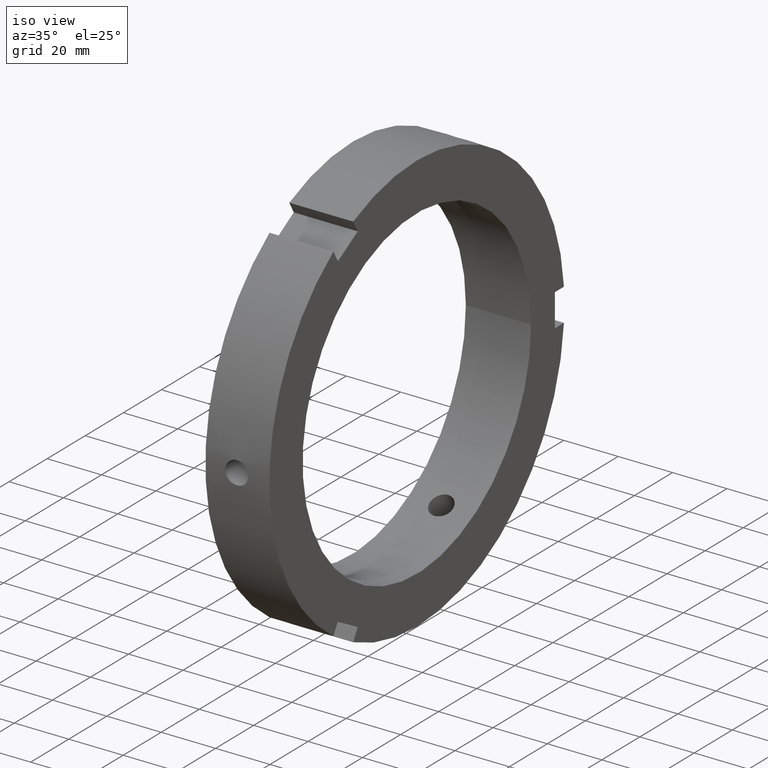
[diagram: clean part render]
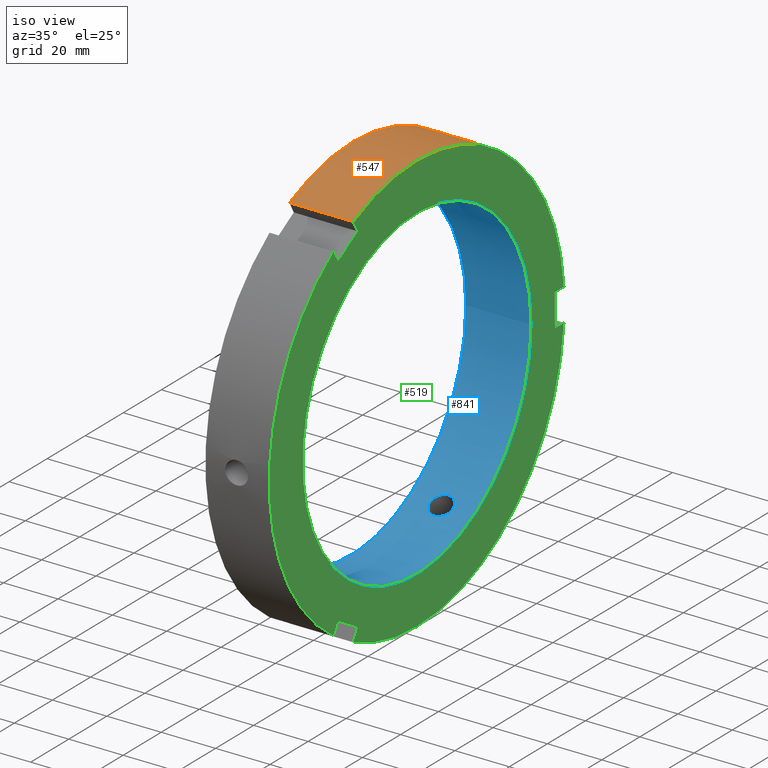
[diagram: same view with three faces highlighted in distinct colors, each labeled with its STEP entity id]
A machine part, iso view with three faces highlighted in distinct colors.
Their STEP definitions:

[orange] entity #547 — the highlighted cylindrical surface (partial cylindrical patch) has radius 77.5 mm, axis along (1, 0, 0).
#175=CARTESIAN_POINT('',(11.999999999999984,42.320294496695240,64.924900259553624));
#176=VERTEX_POINT('',#175);
#177=CARTESIAN_POINT('',(11.999999999999984,42.320294496695247,64.924900259553624));
#178=CARTESIAN_POINT('',(12.525964593773827,42.320294496695247,64.924900259553624));
#179=CARTESIAN_POINT('',(13.086917241225173,42.232201750691601,64.982589392082332));
#180=CARTESIAN_POINT('',(14.118723575508250,41.872717265855627,65.214809188765045));
#181=CARTESIAN_POINT('',(14.589585949451681,41.601176498465279,65.389070450448429));
#182=CARTESIAN_POINT('',(15.333140342570605,40.971455917133348,65.785471195247538));
#183=CARTESIAN_POINT('',(15.655432256882104,40.571244418953100,66.034009391728972));
#184=CARTESIAN_POINT('',(16.082864919867323,39.688345750655046,66.568397018586751));
#185=CARTESIAN_POINT('',(16.187999999999985,39.205498568363375,66.853986572233893));
#186=CARTESIAN_POINT('',(16.187999999999985,38.294501431636718,67.379951014354006));
#187=CARTESIAN_POINT('',(16.082864919867326,37.805750031977013,67.655314163540766));
#188=CARTESIAN_POINT('',(15.655432256882111,36.901507437501060,68.152733025825427));
#189=CARTESIAN_POINT('',(15.333140342570605,36.486161296447250,68.375057251895441));
#190=CARTESIAN_POINT('',(14.589585949451687,35.828007890706168,68.722210900215259));
#191=CARTESIAN_POINT('',(14.118723575508263,35.541322827497645,68.870241472096723));
#192=CARTESIAN_POINT('',(13.086917241225184,35.160472341890767,69.065454269889685));
#193=CARTESIAN_POINT('',(12.525964593773828,35.066465714596802,69.112900259553612));
#194=CARTESIAN_POINT('',(11.474035406226140,35.066465714596802,69.112900259553612));
#195=CARTESIAN_POINT('',(10.913082758774785,35.160472341890767,69.065454269889685));
#196=CARTESIAN_POINT('',(9.881276424491706,35.541322827497638,68.870241472096723));
#197=CARTESIAN_POINT('',(9.410414050548283,35.828007890706168,68.722210900215259));
#198=CARTESIAN_POINT('',(8.666859657429363,36.486161296447250,68.375057251895441));
#199=CARTESIAN_POINT('',(8.344567743117853,36.901507437501060,68.152733025825427));
#200=CARTESIAN_POINT('',(7.917135080132639,37.805750031977013,67.655314163540766));
#201=CARTESIAN_POINT('',(7.811999999999983,38.294501431636718,67.379951014354006));
#202=CARTESIAN_POINT('',(7.811999999999983,39.205498568363375,66.853986572233893));
#203=CARTESIAN_POINT('',(7.917135080132642,39.688345750655039,66.568397018586765));
#204=CARTESIAN_POINT('',(8.344567743117858,40.571244418953086,66.034009391728972));
#205=CARTESIAN_POINT('',(8.666859657429360,40.971455917133348,65.785471195247538));
#206=CARTESIAN_POINT('',(9.410414050548283,41.601176498465279,65.389070450448429));
#207=CARTESIAN_POINT('',(9.881276424491714,41.872717265855627,65.214809188765045));
#208=CARTESIAN_POINT('',(10.913082758774790,42.232201750691601,64.982589392082332));
#209=CARTESIAN_POINT('',(11.474035406226140,42.320294496695254,64.924900259553610));
#210=CARTESIAN_POINT('',(11.999999999999984,42.320294496695254,64.924900259553610));
#211=B_SPLINE_CURVE_WITH_KNOTS('',3,(#177,#178,#179,#180,#181,#182,#183,#184,#185,#186,#187,#188,#189,#190,#191,#192,#193,#194,#195,#196,#197,#198,#199,#200,#201,#202,#203,#204,#205,#206,#207,#208,#209,#210),.UNSPECIFIED.,.T.,.U.,(4,2,2,2,2,2,2,2,2,2,2,2,2,2,2,2,4),(0.0,0.157789378132153,0.315578756264306,0.473368088900339,0.631157421536372,0.788946754172404,0.946736086808437,1.104525464940590,1.262314843072743,1.420104221204896,1.577893599337049,1.735682931973082,1.893472264609114,2.051261597245147,2.209050929881181,2.366840308013333,2.524629686145486),.UNSPECIFIED.);
#212=EDGE_CURVE('',#176,#176,#211,.T.);
#265=CARTESIAN_POINT('',(0.499999999999980,-33.437544009294264,69.915525104418037));
#266=VERTEX_POINT('',#265);
#281=CARTESIAN_POINT('',(23.999999999999986,-33.437544009294264,69.915525104418037));
#282=VERTEX_POINT('',#281);
#289=CARTESIAN_POINT('',(0.499999999999979,-33.437544009294264,69.915525104418037));
#290=DIRECTION('',(1.0,0.0,0.0));
#291=VECTOR('',#290,23.500000000000007);
#292=LINE('',#289,#291);
#293=EDGE_CURVE('',#266,#282,#292,.T.);
#481=CARTESIAN_POINT('',(23.999999999999986,77.267392864001820,5.999999999999996));
#482=VERTEX_POINT('',#481);
#489=CARTESIAN_POINT('',(23.999999999999986,0.0,0.0));
#490=DIRECTION('',(1.0,0.0,0.0));
#491=DIRECTION('',(0.0,1.0,0.0));
#492=AXIS2_PLACEMENT_3D('',#489,#490,#491);
#493=CIRCLE('',#492,77.500000000000000);
#494=EDGE_CURVE('',#482,#282,#493,.T.);
#520=CARTESIAN_POINT('',(12.249999999999982,0.0,0.0));
#521=DIRECTION('',(1.0,0.0,0.0));
#522=DIRECTION('',(0.0,1.0,0.0));
#523=AXIS2_PLACEMENT_3D('',#520,#521,#522);
#524=CYLINDRICAL_SURFACE('',#523,77.500000000000000);
#525=ORIENTED_EDGE('',*,*,#293,.T.);
#526=ORIENTED_EDGE('',*,*,#494,.F.);
#527=CARTESIAN_POINT('',(0.499999999999980,77.267392864001820,5.999999999999996));
#528=VERTEX_POINT('',#527);
#529=CARTESIAN_POINT('',(23.999999999999986,77.267392864001820,5.999999999999996));
#530=DIRECTION('',(-1.0,0.0,0.0));
#531=VECTOR('',#530,23.500000000000007);
#532=LINE('',#529,#531);
#533=EDGE_CURVE('',#482,#528,#532,.T.);
#534=ORIENTED_EDGE('',*,*,#533,.T.);
#535=CARTESIAN_POINT('',(0.499999999999980,0.0,0.0));
#536=DIRECTION('',(1.0,0.0,0.0));
#537=DIRECTION('',(0.0,1.0,0.0));
#538=AXIS2_PLACEMENT_3D('',#535,#536,#537);
#539=CIRCLE('',#538,77.500000000000000);
#540=EDGE_CURVE('',#528,#266,#539,.T.);
#541=ORIENTED_EDGE('',*,*,#540,.T.);
#542=EDGE_LOOP('',(#525,#526,#534,#541));
#543=FACE_OUTER_BOUND('',#542,.T.);
#544=ORIENTED_EDGE('',*,*,#212,.T.);
#545=EDGE_LOOP('',(#544));
#546=FACE_BOUND('',#545,.T.);
#547=ADVANCED_FACE('',(#543,#546),#524,.T.);

[blue] entity #841 — the highlighted cylindrical surface (bore or boss wall) has radius 60 mm, axis along (1, 0, 0).
#216=CARTESIAN_POINT('',(11.999999999999984,33.553744560647907,49.740790363229969));
#217=VERTEX_POINT('',#216);
#218=CARTESIAN_POINT('',(11.999999999999984,33.553744560647921,49.740790363229962));
#219=CARTESIAN_POINT('',(11.473961648556079,33.553744560647921,49.740790363229962));
#220=CARTESIAN_POINT('',(10.912977352464576,33.466494284827178,49.799996287970309));
#221=CARTESIAN_POINT('',(9.881191404897139,33.110119315408284,50.037644517113520));
#222=CARTESIAN_POINT('',(9.410375211702402,32.840803123454606,50.215736349348091));
#223=CARTESIAN_POINT('',(8.666898687981091,32.215303488662116,50.619292249214325));
#224=CARTESIAN_POINT('',(8.344617878141040,31.817341154783037,50.871633920211522));
#225=CARTESIAN_POINT('',(7.917163805398965,30.937575076804897,51.411407141180391));
#226=CARTESIAN_POINT('',(7.811999999999983,30.455562209413166,51.698505262828995));
#227=CARTESIAN_POINT('',(7.811999999999983,29.544437790586905,52.224543191303574));
#228=CARTESIAN_POINT('',(7.917163805398965,29.054797090164548,52.498429518591500));
#229=CARTESIAN_POINT('',(8.344617878141044,28.147456729533875,52.990442681023929));
#230=CARTESIAN_POINT('',(8.666898687981096,27.729941265077372,53.208917336413961));
#231=CARTESIAN_POINT('',(9.410375211702407,27.067701786549868,53.548837960269033));
#232=CARTESIAN_POINT('',(9.881191404897137,26.778811639651376,53.693026708034125));
#233=CARTESIAN_POINT('',(10.912977352464575,26.394814751339521,53.882832370252189));
#234=CARTESIAN_POINT('',(11.473961648556079,26.299915778549455,53.928790363229950));
#235=CARTESIAN_POINT('',(12.526038351443889,26.299915778549451,53.928790363229950));
#236=CARTESIAN_POINT('',(13.087022647535388,26.394814751339524,53.882832370252189));
#237=CARTESIAN_POINT('',(14.118808595102827,26.778811639651380,53.693026708034125));
#238=CARTESIAN_POINT('',(14.589624788297559,27.067701786549865,53.548837960269026));
#239=CARTESIAN_POINT('',(15.333101312018872,27.729941265077372,53.208917336413961));
#240=CARTESIAN_POINT('',(15.655382121858930,28.147456729533886,52.990442681023929));
#241=CARTESIAN_POINT('',(16.082836194601008,29.054797090164559,52.498429518591500));
#242=CARTESIAN_POINT('',(16.187999999999985,29.544437790586905,52.224543191303574));
#243=CARTESIAN_POINT('',(16.187999999999985,30.455562209413166,51.698505262828995));
#244=CARTESIAN_POINT('',(16.082836194601001,30.937575076804894,51.411407141180391));
#245=CARTESIAN_POINT('',(15.655382121858930,31.817341154783033,50.871633920211522));
#246=CARTESIAN_POINT('',(15.333101312018877,32.215303488662116,50.619292249214325));
#247=CARTESIAN_POINT('',(14.589624788297566,32.840803123454606,50.215736349348091));
#248=CARTESIAN_POINT('',(14.118808595102825,33.110119315408284,50.037644517113520));
#249=CARTESIAN_POINT('',(13.087022647535392,33.466494284827178,49.799996287970309));
#250=CARTESIAN_POINT('',(12.526038351443887,33.553744560647914,49.740790363229962));
#251=CARTESIAN_POINT('',(11.999999999999984,33.553744560647914,49.740790363229962));
#252=B_SPLINE_CURVE_WITH_KNOTS('',3,(#218,#219,#220,#221,#222,#223,#224,#225,#226,#227,#228,#229,#230,#231,#232,#233,#234,#235,#236,#237,#238,#239,#240,#241,#242,#243,#244,#245,#246,#247,#248,#249,#250,#251),.UNSPECIFIED.,.T.,.U.,(4,2,2,2,2,2,2,2,2,2,2,2,2,2,2,2,4),(0.0,0.157811505433171,0.315623010866342,0.473434389408718,0.631245767951093,0.789057146493469,0.946868525035844,1.104680030469016,1.262491535902187,1.420303041335359,1.578114546768530,1.735925925310906,1.893737303853281,2.051548682395656,2.209360060938032,2.367171566371203,2.524983071804374),.UNSPECIFIED.);
#253=EDGE_CURVE('',#217,#217,#252,.T.);
#406=CARTESIAN_POINT('',(11.999999999999984,26.299915778549412,-53.928790363229986));
#407=VERTEX_POINT('',#406);
#408=CARTESIAN_POINT('',(11.999999999999984,26.299915778549412,-53.928790363229986));
#409=CARTESIAN_POINT('',(11.473961648556079,26.299915778549412,-53.928790363229986));
#410=CARTESIAN_POINT('',(10.912977352464576,26.394814751339474,-53.882832370252210));
#411=CARTESIAN_POINT('',(9.881191404897137,26.778811639651330,-53.693026708034147));
#412=CARTESIAN_POINT('',(9.410375211702405,27.067701786549819,-53.548837960269054));
#413=CARTESIAN_POINT('',(8.666898687981092,27.729941265077322,-53.208917336413975));
#414=CARTESIAN_POINT('',(8.344617878141031,28.147456729533840,-52.990442681023950));
#415=CARTESIAN_POINT('',(7.917163805398961,29.054797090164506,-52.498429518591514));
#416=CARTESIAN_POINT('',(7.811999999999984,29.544437790586855,-52.224543191303603));
#417=CARTESIAN_POINT('',(7.811999999999983,30.455562209413117,-51.698505262829016));
#418=CARTESIAN_POINT('',(7.917163805398965,30.937575076804844,-51.411407141180419));
#419=CARTESIAN_POINT('',(8.344617878141033,31.817341154782977,-50.871633920211544));
#420=CARTESIAN_POINT('',(8.666898687981096,32.215303488662045,-50.619292249214368));
#421=CARTESIAN_POINT('',(9.410375211702402,32.840803123454535,-50.215736349348120));
#422=CARTESIAN_POINT('',(9.881191404897136,33.110119315408227,-50.037644517113549));
#423=CARTESIAN_POINT('',(10.912977352464575,33.466494284827128,-49.799996287970330));
#424=CARTESIAN_POINT('',(11.473961648556077,33.553744560647857,-49.740790363229983));
#425=CARTESIAN_POINT('',(12.526038351443891,33.553744560647857,-49.740790363229983));
#426=CARTESIAN_POINT('',(13.087022647535393,33.466494284827135,-49.799996287970345));
#427=CARTESIAN_POINT('',(14.118808595102834,33.110119315408241,-50.037644517113556));
#428=CARTESIAN_POINT('',(14.589624788297566,32.840803123454535,-50.215736349348120));
#429=CARTESIAN_POINT('',(15.333101312018870,32.215303488662038,-50.619292249214368));
#430=CARTESIAN_POINT('',(15.655382121858940,31.817341154782973,-50.871633920211551));
#431=CARTESIAN_POINT('',(16.082836194601004,30.937575076804841,-51.411407141180433));
#432=CARTESIAN_POINT('',(16.187999999999985,30.455562209413117,-51.698505262829016));
#433=CARTESIAN_POINT('',(16.187999999999985,29.544437790586855,-52.224543191303603));
#434=CARTESIAN_POINT('',(16.082836194601008,29.054797090164506,-52.498429518591514));
#435=CARTESIAN_POINT('',(15.655382121858938,28.147456729533840,-52.990442681023950));
#436=CARTESIAN_POINT('',(15.333101312018876,27.729941265077322,-53.208917336413975));
#437=CARTESIAN_POINT('',(14.589624788297563,27.067701786549819,-53.548837960269054));
#438=CARTESIAN_POINT('',(14.118808595102832,26.778811639651330,-53.693026708034147));
#439=CARTESIAN_POINT('',(13.087022647535392,26.394814751339474,-53.882832370252210));
#440=CARTESIAN_POINT('',(12.526038351443889,26.299915778549412,-53.928790363229986));
#441=CARTESIAN_POINT('',(11.999999999999984,26.299915778549412,-53.928790363229986));
#442=B_SPLINE_CURVE_WITH_KNOTS('',3,(#408,#409,#410,#411,#412,#413,#414,#415,#416,#417,#418,#419,#420,#421,#422,#423,#424,#425,#426,#427,#428,#429,#430,#431,#432,#433,#434,#435,#436,#437,#438,#439,#440,#441),.UNSPECIFIED.,.T.,.U.,(4,2,2,2,2,2,2,2,2,2,2,2,2,2,2,2,4),(0.0,0.157811505433171,0.315623010866343,0.473434389408718,0.631245767951093,0.789057146493467,0.946868525035841,1.104680030469013,1.262491535902185,1.420303041335357,1.578114546768529,1.735925925310903,1.893737303853277,2.051548682395652,2.209360060938028,2.367171566371199,2.524983071804371),.UNSPECIFIED.);
#443=EDGE_CURVE('',#407,#407,#442,.T.);
#508=CARTESIAN_POINT('',(23.999999999999989,60.0,0.0));
#509=VERTEX_POINT('',#508);
#510=CARTESIAN_POINT('',(23.999999999999989,0.0,0.0));
#511=DIRECTION('',(1.0,0.0,0.0));
#512=DIRECTION('',(0.0,1.0,0.0));
#513=AXIS2_PLACEMENT_3D('',#510,#511,#512);
#514=CIRCLE('',#513,60.0);
#515=EDGE_CURVE('',#509,#509,#514,.T.);
#643=CARTESIAN_POINT('',(11.999999999999984,-59.853660339197305,4.188000000000000));
#644=VERTEX_POINT('',#643);
#645=CARTESIAN_POINT('',(11.999999999999984,-59.853660339197305,4.188000000000000));
#646=CARTESIAN_POINT('',(11.473961648556079,-59.853660339197305,4.188000000000000));
#647=CARTESIAN_POINT('',(10.912977352464582,-59.861309036166631,4.082836082281867));
#648=CARTESIAN_POINT('',(9.881191404897143,-59.888930955059593,3.655382190920596));
#649=CARTESIAN_POINT('',(9.410375211702405,-59.908504910004403,3.333101610920944));
#650=CARTESIAN_POINT('',(8.666898687981092,-59.945244753739416,2.589625087199631));
#651=CARTESIAN_POINT('',(8.344617878141037,-59.964797884316845,2.118808760812411));
#652=CARTESIAN_POINT('',(7.917163805398962,-59.992372166969375,1.087022377411100));
#653=CARTESIAN_POINT('',(7.811999999999983,-60.0,0.526037928474585));
#654=CARTESIAN_POINT('',(7.811999999999983,-60.0,-0.526037928474585));
#655=CARTESIAN_POINT('',(7.917163805398962,-59.992372166969375,-1.087022377411100));
#656=CARTESIAN_POINT('',(8.344617878141037,-59.964797884316845,-2.118808760812411));
#657=CARTESIAN_POINT('',(8.666898687981092,-59.945244753739416,-2.589625087199631));
#658=CARTESIAN_POINT('',(9.410375211702405,-59.908504910004403,-3.333101610920944));
#659=CARTESIAN_POINT('',(9.881191404897143,-59.888930955059593,-3.655382190920596));
#660=CARTESIAN_POINT('',(10.912977352464582,-59.861309036166631,-4.082836082281867));
#661=CARTESIAN_POINT('',(11.473961648556079,-59.853660339197305,-4.188000000000000));
#662=CARTESIAN_POINT('',(12.526038351443889,-59.853660339197305,-4.188000000000000));
#663=CARTESIAN_POINT('',(13.087022647535386,-59.861309036166631,-4.082836082281868));
#664=CARTESIAN_POINT('',(14.118808595102827,-59.888930955059593,-3.655382190920596));
#665=CARTESIAN_POINT('',(14.589624788297563,-59.908504910004403,-3.333101610920944));
#666=CARTESIAN_POINT('',(15.333101312018872,-59.945244753739416,-2.589625087199632));
#667=CARTESIAN_POINT('',(15.655382121858931,-59.964797884316845,-2.118808760812414));
#668=CARTESIAN_POINT('',(16.082836194601008,-59.992372166969375,-1.087022377411102));
#669=CARTESIAN_POINT('',(16.187999999999985,-60.0,-0.526037928474586));
#670=CARTESIAN_POINT('',(16.187999999999985,-60.0,0.526037928474585));
#671=CARTESIAN_POINT('',(16.082836194601008,-59.992372166969375,1.087022377411102));
#672=CARTESIAN_POINT('',(15.655382121858931,-59.964797884316845,2.118808760812413));
#673=CARTESIAN_POINT('',(15.333101312018872,-59.945244753739416,2.589625087199631));
#674=CARTESIAN_POINT('',(14.589624788297563,-59.908504910004403,3.333101610920944));
#675=CARTESIAN_POINT('',(14.118808595102827,-59.888930955059593,3.655382190920596));
#676=CARTESIAN_POINT('',(13.087022647535386,-59.861309036166631,4.082836082281867));
#677=CARTESIAN_POINT('',(12.526038351443889,-59.853660339197305,4.188000000000000));
#678=CARTESIAN_POINT('',(11.999999999999984,-59.853660339197305,4.188000000000000));
#679=B_SPLINE_CURVE_WITH_KNOTS('',3,(#645,#646,#647,#648,#649,#650,#651,#652,#653,#654,#655,#656,#657,#658,#659,#660,#661,#662,#663,#664,#665,#666,#667,#668,#669,#670,#671,#672,#673,#674,#675,#676,#677,#678),.UNSPECIFIED.,.T.,.U.,(4,2,2,2,2,2,2,2,2,2,2,2,2,2,2,2,4),(0.0,0.157811505433171,0.315623010866343,0.473434389408718,0.631245767951094,0.789057146493469,0.946868525035845,1.104680030469016,1.262491535902188,1.420303041335359,1.578114546768531,1.735925925310906,1.893737303853282,2.051548682395657,2.209360060938033,2.367171566371204,2.524983071804376),.UNSPECIFIED.);
#680=EDGE_CURVE('',#644,#644,#679,.T.);
#766=CARTESIAN_POINT('',(-1.747547E-014,60.0,0.0));
#767=VERTEX_POINT('',#766);
#768=CARTESIAN_POINT('',(-1.747734E-014,0.0,0.0));
#769=DIRECTION('',(1.0,0.0,0.0));
#770=DIRECTION('',(0.0,1.0,0.0));
#771=AXIS2_PLACEMENT_3D('',#768,#769,#770);
#772=CIRCLE('',#771,60.0);
#773=EDGE_CURVE('',#767,#767,#772,.T.);
#821=CARTESIAN_POINT('',(11.999999999999986,0.0,0.0));
#822=DIRECTION('',(1.0,0.0,0.0));
#823=DIRECTION('',(0.0,1.0,0.0));
#824=AXIS2_PLACEMENT_3D('',#821,#822,#823);
#825=CYLINDRICAL_SURFACE('',#824,60.0);
#826=ORIENTED_EDGE('',*,*,#773,.F.);
#827=EDGE_LOOP('',(#826));
#828=FACE_OUTER_BOUND('',#827,.T.);
#829=ORIENTED_EDGE('',*,*,#253,.T.);
#830=EDGE_LOOP('',(#829));
#831=FACE_BOUND('',#830,.T.);
#832=ORIENTED_EDGE('',*,*,#443,.T.);
#833=EDGE_LOOP('',(#832));
#834=FACE_BOUND('',#833,.T.);
#835=ORIENTED_EDGE('',*,*,#680,.T.);
#836=EDGE_LOOP('',(#835));
#837=FACE_BOUND('',#836,.T.);
#838=ORIENTED_EDGE('',*,*,#515,.T.);
#839=EDGE_LOOP('',(#838));
#840=FACE_BOUND('',#839,.T.);
#841=ADVANCED_FACE('',(#828,#831,#834,#837,#840),#825,.F.);

[green] entity #519 — the highlighted planar face has unit normal (1, 0, 0).
#83=CARTESIAN_POINT('',(23.999999999999986,-41.446152422706668,-59.786841774371794));
#84=VERTEX_POINT('',#83);
#91=CARTESIAN_POINT('',(23.999999999999986,-43.829848854707578,-63.915525104418016));
#92=VERTEX_POINT('',#91);
#93=CARTESIAN_POINT('',(23.999999999999986,-43.829848854707592,-63.915525104418023));
#94=DIRECTION('',(0.0,0.500000000000001,0.866025403784438));
#95=VECTOR('',#94,4.767392864001815);
#96=LINE('',#93,#95);
#97=EDGE_CURVE('',#92,#84,#96,.T.);
#123=CARTESIAN_POINT('',(23.999999999999986,-33.437544009294321,-69.915525104418009));
#124=VERTEX_POINT('',#123);
#131=CARTESIAN_POINT('',(23.999999999999986,-31.053847577293411,-65.786841774371794));
#132=VERTEX_POINT('',#131);
#133=CARTESIAN_POINT('',(23.999999999999986,-31.053847577293411,-65.786841774371794));
#134=DIRECTION('',(0.0,-0.500000000000000,-0.866025403784439));
#135=VECTOR('',#134,4.767392864001837);
#136=LINE('',#133,#135);
#137=EDGE_CURVE('',#132,#124,#136,.T.);
#160=CARTESIAN_POINT('',(23.999999999999986,-41.446152422706675,-59.786841774371794));
#161=DIRECTION('',(0.0,0.866025403784438,-0.500000000000001));
#162=VECTOR('',#161,11.999999999999988);
#163=LINE('',#160,#162);
#164=EDGE_CURVE('',#84,#132,#163,.T.);
#273=CARTESIAN_POINT('',(23.999999999999986,-31.053847577293357,65.786841774371808));
#274=VERTEX_POINT('',#273);
#281=CARTESIAN_POINT('',(23.999999999999986,-33.437544009294264,69.915525104418037));
#282=VERTEX_POINT('',#281);
#283=CARTESIAN_POINT('',(23.999999999999986,-33.437544009294271,69.915525104418052));
#284=DIRECTION('',(0.0,0.499999999999999,-0.866025403784439));
#285=VECTOR('',#284,4.767392864001818);
#286=LINE('',#283,#285);
#287=EDGE_CURVE('',#282,#274,#286,.T.);
#313=CARTESIAN_POINT('',(23.999999999999986,-43.829848854707535,63.915525104418045));
#314=VERTEX_POINT('',#313);
#321=CARTESIAN_POINT('',(23.999999999999986,-41.446152422706618,59.786841774371815));
#322=VERTEX_POINT('',#321);
#323=CARTESIAN_POINT('',(23.999999999999986,-41.446152422706632,59.786841774371823));
#324=DIRECTION('',(0.0,-0.499999999999999,0.866025403784439));
#325=VECTOR('',#324,4.767392864001818);
#326=LINE('',#323,#325);
#327=EDGE_CURVE('',#322,#314,#326,.T.);
#350=CARTESIAN_POINT('',(23.999999999999986,-31.053847577293364,65.786841774371837));
#351=DIRECTION('',(0.0,-0.866025403784439,-0.500000000000000));
#352=VECTOR('',#351,12.000000000000004);
#353=LINE('',#350,#352);
#354=EDGE_CURVE('',#274,#322,#353,.T.);
#448=CARTESIAN_POINT('',(23.999999999999986,68.750000000000000,0.0));
#449=DIRECTION('',(1.0,0.0,0.0));
#450=DIRECTION('',(0.0,0.0,-1.0));
#451=AXIS2_PLACEMENT_3D('',#448,#449,#450);
#452=PLANE('',#451);
#453=ORIENTED_EDGE('',*,*,#97,.T.);
#454=ORIENTED_EDGE('',*,*,#164,.T.);
#455=ORIENTED_EDGE('',*,*,#137,.T.);
#456=CARTESIAN_POINT('',(23.999999999999986,77.267392864001820,-5.999999999999996));
#457=VERTEX_POINT('',#456);
#458=CARTESIAN_POINT('',(23.999999999999986,0.0,0.0));
#459=DIRECTION('',(1.0,0.0,0.0));
#460=DIRECTION('',(0.0,1.0,0.0));
#461=AXIS2_PLACEMENT_3D('',#458,#459,#460);
#462=CIRCLE('',#461,77.500000000000000);
#463=EDGE_CURVE('',#124,#457,#462,.T.);
#464=ORIENTED_EDGE('',*,*,#463,.T.);
#465=CARTESIAN_POINT('',(23.999999999999986,72.500000000000000,-5.999999999999996));
#466=VERTEX_POINT('',#465);
#467=CARTESIAN_POINT('',(23.999999999999986,77.267392864001820,-5.999999999999996));
#468=DIRECTION('',(0.0,-1.0,0.0));
#469=VECTOR('',#468,4.767392864001820);
#470=LINE('',#467,#469);
#471=EDGE_CURVE('',#457,#466,#470,.T.);
#472=ORIENTED_EDGE('',*,*,#471,.T.);
#473=CARTESIAN_POINT('',(23.999999999999986,72.500000000000000,5.999999999999996));
#474=VERTEX_POINT('',#473);
#475=CARTESIAN_POINT('',(23.999999999999986,72.500000000000000,-5.999999999999996));
#476=DIRECTION('',(0.0,0.0,1.0));
#477=VECTOR('',#476,11.999999999999993);
#478=LINE('',#475,#477);
#479=EDGE_CURVE('',#466,#474,#478,.T.);
#480=ORIENTED_EDGE('',*,*,#479,.T.);
#481=CARTESIAN_POINT('',(23.999999999999986,77.267392864001820,5.999999999999996));
#482=VERTEX_POINT('',#481);
#483=CARTESIAN_POINT('',(23.999999999999986,72.500000000000000,5.999999999999996));
#484=DIRECTION('',(0.0,1.0,0.0));
#485=VECTOR('',#484,4.767392864001820);
#486=LINE('',#483,#485);
#487=EDGE_CURVE('',#474,#482,#486,.T.);
#488=ORIENTED_EDGE('',*,*,#487,.T.);
#489=CARTESIAN_POINT('',(23.999999999999986,0.0,0.0));
#490=DIRECTION('',(1.0,0.0,0.0));
#491=DIRECTION('',(0.0,1.0,0.0));
#492=AXIS2_PLACEMENT_3D('',#489,#490,#491);
#493=CIRCLE('',#492,77.500000000000000);
#494=EDGE_CURVE('',#482,#282,#493,.T.);
#495=ORIENTED_EDGE('',*,*,#494,.T.);
#496=ORIENTED_EDGE('',*,*,#287,.T.);
#497=ORIENTED_EDGE('',*,*,#354,.T.);
#498=ORIENTED_EDGE('',*,*,#327,.T.);
#499=CARTESIAN_POINT('',(23.999999999999986,0.0,0.0));
#500=DIRECTION('',(1.0,0.0,0.0));
#501=DIRECTION('',(0.0,1.0,0.0));
#502=AXIS2_PLACEMENT_3D('',#499,#500,#501);
#503=CIRCLE('',#502,77.500000000000000);
#504=EDGE_CURVE('',#314,#92,#503,.T.);
#505=ORIENTED_EDGE('',*,*,#504,.T.);
#506=EDGE_LOOP('',(#453,#454,#455,#464,#472,#480,#488,#495,#496,#497,#498,#505));
#507=FACE_OUTER_BOUND('',#506,.T.);
#508=CARTESIAN_POINT('',(23.999999999999989,60.0,0.0));
#509=VERTEX_POINT('',#508);
#510=CARTESIAN_POINT('',(23.999999999999989,0.0,0.0));
#511=DIRECTION('',(1.0,0.0,0.0));
#512=DIRECTION('',(0.0,1.0,0.0));
#513=AXIS2_PLACEMENT_3D('',#510,#511,#512);
#514=CIRCLE('',#513,60.0);
#515=EDGE_CURVE('',#509,#509,#514,.T.);
#516=ORIENTED_EDGE('',*,*,#515,.F.);
#517=EDGE_LOOP('',(#516));
#518=FACE_BOUND('',#517,.T.);
#519=ADVANCED_FACE('',(#507,#518),#452,.T.);